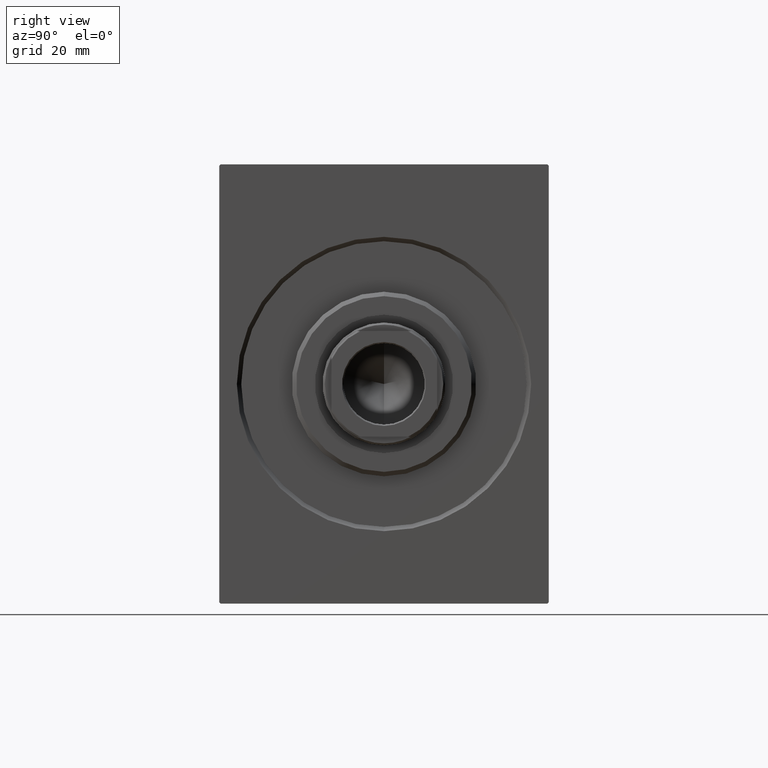
[diagram: clean part render]
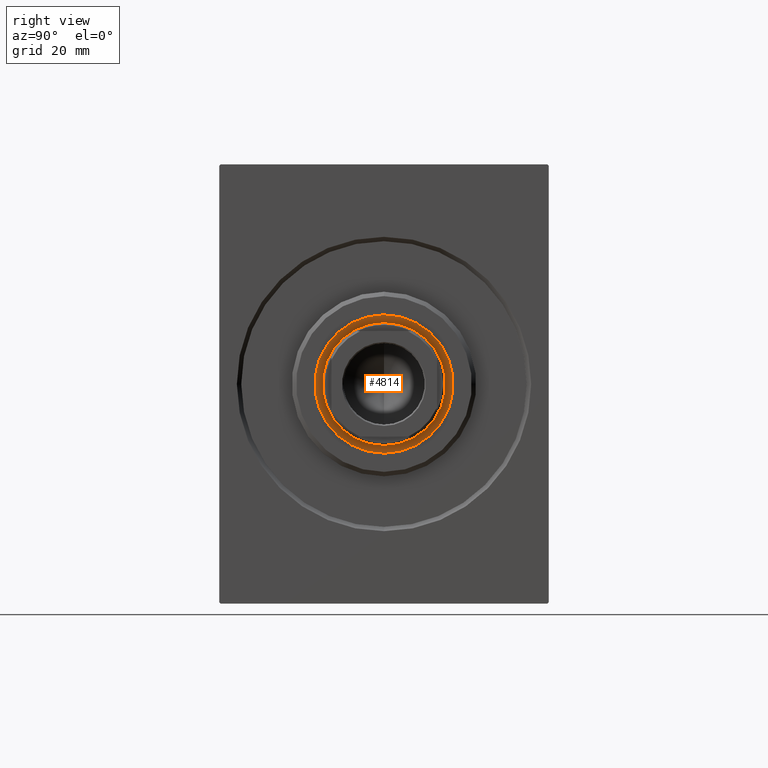
[diagram: same view with one face highlighted and labeled with its STEP entity id]
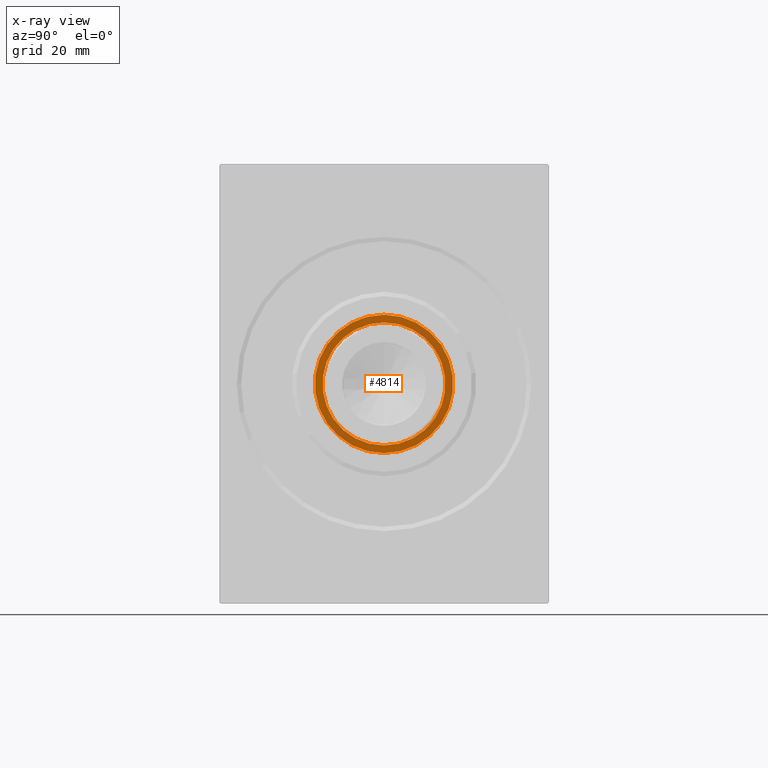
[diagram: x-ray of the same camera — body ghosted, the highlighted face saturated]
A machine part, right view. The second image highlights one B-rep face of the part: STEP entity #4814.
The next image is the same camera in x-ray: the body ghosted, the highlighted face saturated — about 0% of this face is hidden behind the body in this view.
In plain terms, the highlighted planar face has unit normal (1, 0, 0).
Its self-contained STEP definition (entity closure, byte-faithful):
#428 = ORIENTED_EDGE ( 'NONE', *, *, #35362, .T. ) ;
#1115 = DIRECTION ( 'NONE',  ( 0.000000000000000000, 0.000000000000000000, -1.000000000000000000 ) ) ;
#1520 = AXIS2_PLACEMENT_3D ( 'NONE', #14589, #38201, #20876 ) ;
#1637 = AXIS2_PLACEMENT_3D ( 'NONE', #21385, #40909, #37644 ) ;
#2391 = ORIENTED_EDGE ( 'NONE', *, *, #33802, .F. ) ;
#2918 = CIRCLE ( 'NONE', #39559, 14.00000000000000178 ) ;
#3290 = CARTESIAN_POINT ( 'NONE',  ( 1.500000000000001332, 0.000000000000000000, -14.00000000000000178 ) ) ;
#4111 = EDGE_CURVE ( 'NONE', #16424, #38099, #33396, .T. ) ;
#4814 = ADVANCED_FACE ( 'NONE', ( #7320, #33759 ), #10774, .T. ) ;
#4936 = CIRCLE ( 'NONE', #1520, 15.75000000000000000 ) ;
#7320 = FACE_BOUND ( 'NONE', #17260, .T. ) ;
#7760 = DIRECTION ( 'NONE',  ( 0.000000000000000000, 0.000000000000000000, -1.000000000000000000 ) ) ;
#10774 = PLANE ( 'NONE',  #1637 ) ;
#11463 = VERTEX_POINT ( 'NONE', #3290 ) ;
#14589 = CARTESIAN_POINT ( 'NONE',  ( 1.500000000000000000, 0.000000000000000000, 0.000000000000000000 ) ) ;
#16424 = VERTEX_POINT ( 'NONE', #40376 ) ;
#17097 = CARTESIAN_POINT ( 'NONE',  ( 1.500000000000001332, 0.000000000000000000, 0.000000000000000000 ) ) ;
#17260 = EDGE_LOOP ( 'NONE', ( #25594, #2391 ) ) ;
#17937 = DIRECTION ( 'NONE',  ( 1.000000000000000000, 0.000000000000000000, 0.000000000000000000 ) ) ;
#20312 = EDGE_LOOP ( 'NONE', ( #428, #42872 ) ) ;
#20876 = DIRECTION ( 'NONE',  ( 0.000000000000000000, 0.000000000000000000, -1.000000000000000000 ) ) ;
#21185 = CARTESIAN_POINT ( 'NONE',  ( 1.500000000000000000, 0.000000000000000000, 0.000000000000000000 ) ) ;
#21385 = CARTESIAN_POINT ( 'NONE',  ( 1.500000000000000000, 0.000000000000000000, 0.000000000000000000 ) ) ;
#24059 = DIRECTION ( 'NONE',  ( 1.000000000000000000, 0.000000000000000000, 0.000000000000000000 ) ) ;
#25594 = ORIENTED_EDGE ( 'NONE', *, *, #37650, .F. ) ;
#26673 = VERTEX_POINT ( 'NONE', #35382 ) ;
#28520 = DIRECTION ( 'NONE',  ( 1.000000000000000000, 0.000000000000000000, 0.000000000000000000 ) ) ;
#31869 = CIRCLE ( 'NONE', #41550, 14.00000000000000178 ) ;
#32409 = CARTESIAN_POINT ( 'NONE',  ( 1.500000000000001332, 0.000000000000000000, 0.000000000000000000 ) ) ;
#33396 = CIRCLE ( 'NONE', #37545, 15.75000000000000000 ) ;
#33759 = FACE_OUTER_BOUND ( 'NONE', #20312, .T. ) ;
#33802 = EDGE_CURVE ( 'NONE', #26673, #11463, #31869, .T. ) ;
#35362 = EDGE_CURVE ( 'NONE', #38099, #16424, #4936, .T. ) ;
#35382 = CARTESIAN_POINT ( 'NONE',  ( 1.500000000000001332, 1.714505518806294441E-15, 14.00000000000000178 ) ) ;
#37545 = AXIS2_PLACEMENT_3D ( 'NONE', #21185, #17937, #7760 ) ;
#37644 = DIRECTION ( 'NONE',  ( 0.000000000000000000, 0.000000000000000000, -1.000000000000000000 ) ) ;
#37650 = EDGE_CURVE ( 'NONE', #11463, #26673, #2918, .T. ) ;
#37746 = CARTESIAN_POINT ( 'NONE',  ( 1.500000000000000000, 0.000000000000000000, 15.75000000000000000 ) ) ;
#38099 = VERTEX_POINT ( 'NONE', #37746 ) ;
#38201 = DIRECTION ( 'NONE',  ( 1.000000000000000000, 0.000000000000000000, 0.000000000000000000 ) ) ;
#39559 = AXIS2_PLACEMENT_3D ( 'NONE', #17097, #24059, #1115 ) ;
#40376 = CARTESIAN_POINT ( 'NONE',  ( 1.500000000000000000, 1.928818708657080950E-15, -15.75000000000000000 ) ) ;
#40909 = DIRECTION ( 'NONE',  ( 1.000000000000000000, 0.000000000000000000, 0.000000000000000000 ) ) ;
#41550 = AXIS2_PLACEMENT_3D ( 'NONE', #32409, #28520, #41732 ) ;
#41732 = DIRECTION ( 'NONE',  ( 0.000000000000000000, 0.000000000000000000, -1.000000000000000000 ) ) ;
#42872 = ORIENTED_EDGE ( 'NONE', *, *, #4111, .T. ) ;